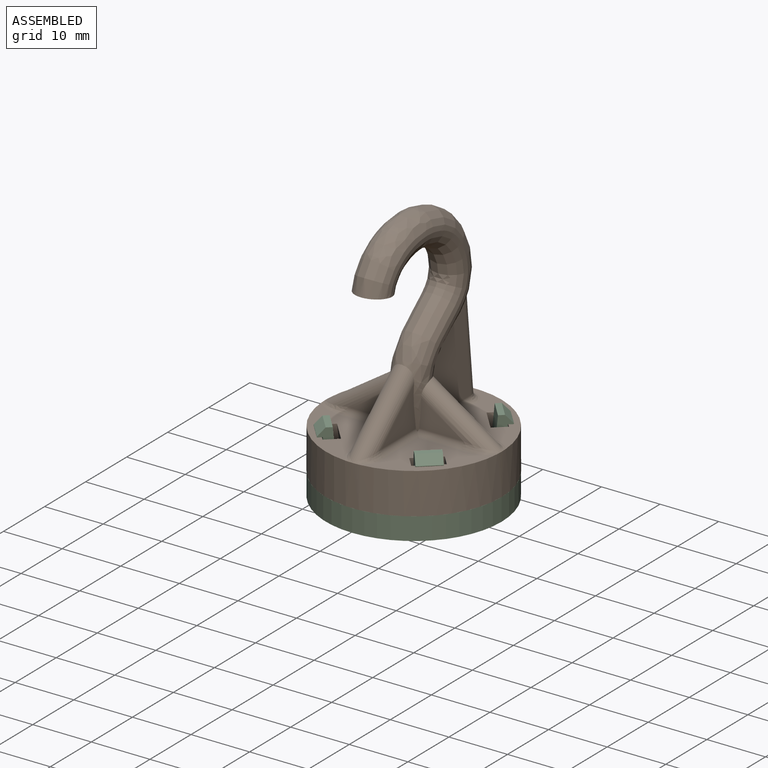
[diagram: assembled view]
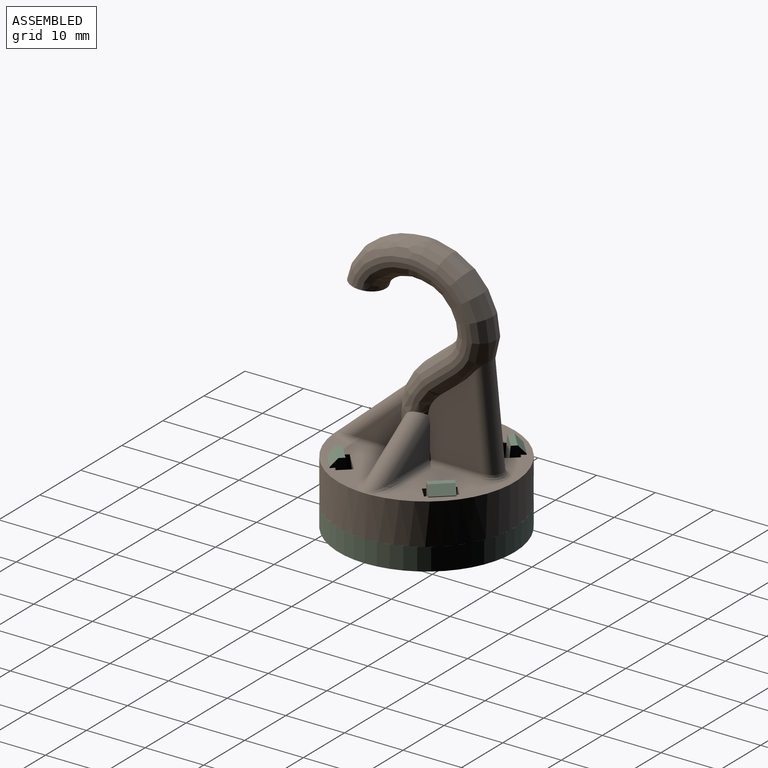
[diagram: assembled view, second angle]
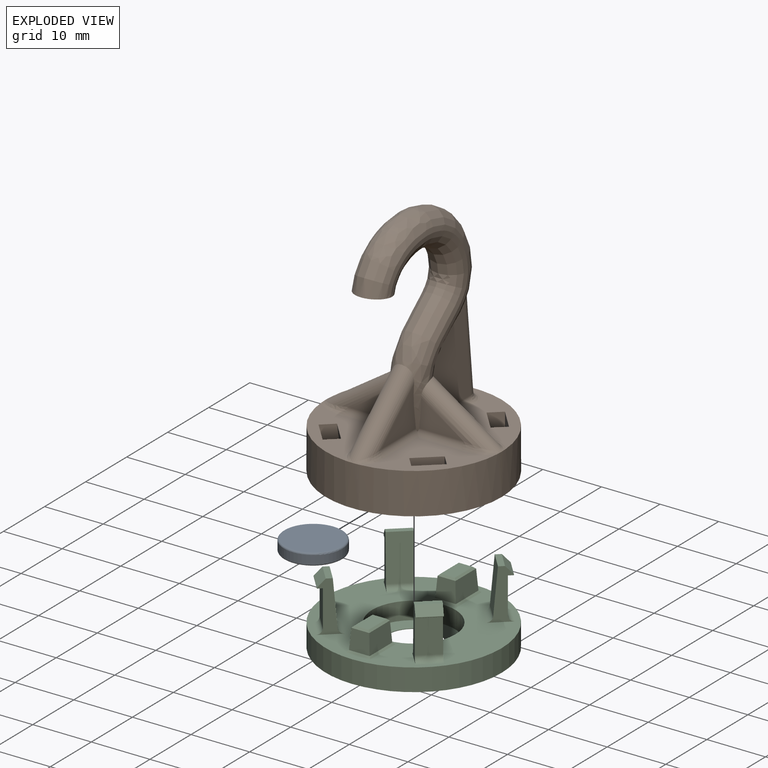
[diagram: exploded view]
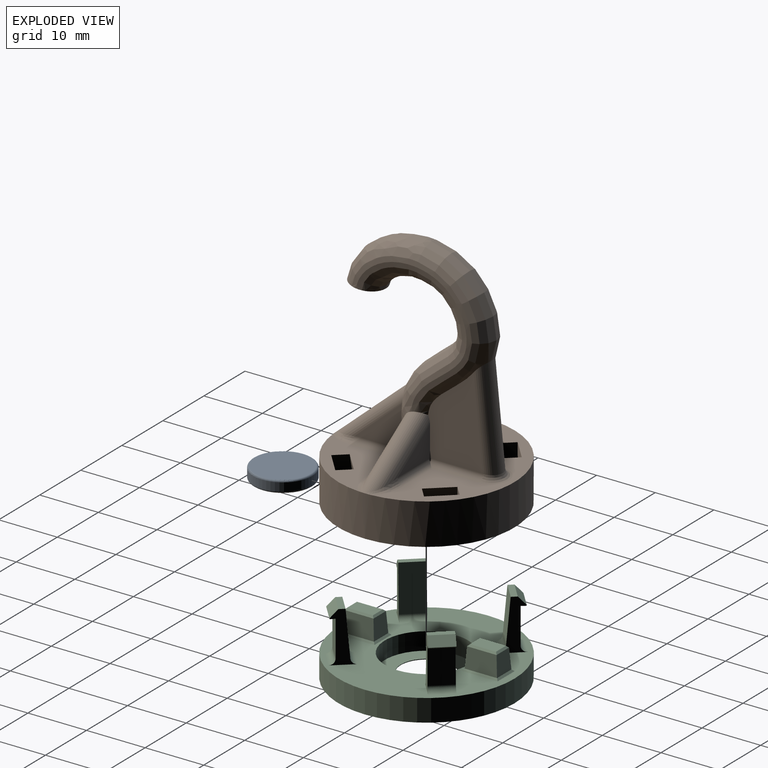
[diagram: exploded view, second angle]
ASSEMBLY  parts=3 mates=2
PART A: 5 faces, bbox 10.8x10.8x2 mm
  f0: cylinder r=5mm len=10mm, axis (0,0,-1), area 44mm2, adj f3,f4
  f1: plane 9.4x9.4mm, normal (0,0,1), area 69.4mm2, adj f4
  f2: plane 9.4x9.4mm, normal (0,0,-1), area 69.4mm2, adj f3
  f3: torus R=4.7mm, axis (0,0,1), area 14.5mm2, adj f0,f2
  f4: torus R=4.7mm, axis (0,0,1), area 14.5mm2, adj f0,f1
PART B: 139 faces, bbox 30.7x31.4x47.2 mm
  f0: plane 30x30mm, normal (0,0,-1), area 398.7mm2, adj f1,f17,f76,f77,f79,f80,f81,f83
  f1: cylinder r=15mm len=30mm, axis (0,0,-1), area 659.7mm2, adj f0,f2,f3,f9,f100,f101,f106,f111
  f2: plane 29.93x13.96mm, normal (0,0,1), area 180.8mm2, adj f1,f84,f85,f86,f87,f88,f89,f90
  f3: plane 13.9x13.69mm, normal (0,0,1), area 87.6mm2, adj f1,f80,f81,f82,f83,f102,f103,f104
  f4: bspline ~36.89x30.83mm, area 772.4mm2, adj f7,f8,f10,f11,f12,f14,f15,f96
  f5: bspline ~6.64x6mm, area 0.2mm2, adj f7,f16,f108,f109
  f6: bspline ~6.64x6mm, area 0.2mm2, adj f8,f13,f112,f114
  f7: plane 15.24x9.38mm, normal (-1,0,0), area 99.9mm2, adj f4,f5,f16,f98,f99,f109
  f8: plane 15.24x9.38mm, normal (1,0,0), area 99.9mm2, adj f4,f6,f13,f97,f99,f112
  f9: plane 13.9x13.69mm, normal (0,0,1), area 87.6mm2, adj f1,f76,f77,f78,f79,f116,f117,f118
  f10: plane 6x5.96mm, normal (0,-0.11,-0.99), area 28.3mm2, adj f4
  f11: plane 8.49x7.08mm, normal (1,0,0), area 28.8mm2, adj f4,f96,f118
  f12: plane 8.49x7.08mm, normal (-1,0,0), area 28.8mm2, adj f4,f96,f104
  f13: plane 7.91x5.26mm, normal (0,1,0), area 20.5mm2, adj f6,f8,f97,f114
  f14: plane 8.04x5.27mm, normal (0,-1,0), area 17.8mm2, adj f4,f97,f117
  f15: plane 8.04x5.27mm, normal (0,-1,0), area 17.8mm2, adj f4,f98,f105
  f16: plane 7.91x5.26mm, normal (0,1,0), area 20.5mm2, adj f5,f7,f98,f108
  f17: cylinder r=7mm len=14mm, axis (0,0,-1), area 131.9mm2, adj f0,f75
  f18: cylinder r=4.9mm len=1.7mm, axis (0,0,-1), area 0.6mm2, adj f26,f29,f30,f31
  f19: cylinder r=4.9mm len=1.7mm, axis (0,0,-1), area 0.6mm2, adj f26,f35,f36,f37
  f20: cylinder r=4.9mm len=1.7mm, axis (0,0,-1), area 0.6mm2, adj f26,f41,f42,f43
  f21: cylinder r=4.9mm len=1.7mm, axis (0,0,-1), area 0.6mm2, adj f26,f47,f48,f49
  f22: cylinder r=4.9mm len=1.7mm, axis (0,0,-1), area 0.6mm2, adj f26,f53,f54,f55
  f23: cylinder r=4.9mm len=1.7mm, axis (0,0,-1), area 0.6mm2, adj f26,f59,f60,f61
  f24: cylinder r=4.9mm len=1.7mm, axis (0,0,-1), area 0.6mm2, adj f26,f65,f66,f67
  f25: cylinder r=4.9mm len=1.7mm, axis (0,0,-1), area 0.6mm2, adj f26,f71,f72,f73
  f26: plane 10.95x10.95mm, normal (0,0,-1), area 91mm2, adj f18,f19,f20,f21,f22,f23,f24,f25
  f27: cylinder r=5.5mm len=3.02mm, axis (0,0,-1), area 6.6mm2, adj f26,f28,f74,f75
  f28: plane 2x0.28mm, normal (1,0,0), area 0.6mm2, adj f26,f27,f29,f75
  f29: plane 2.01x0.32mm, normal (0.69,0.72,0), area 0.8mm2, adj f18,f26,f28,f30,f75
  f30: cone r=4.9mm half-angle=45deg, axis (0,0,-1), area 0.3mm2, adj f18,f29,f31,f75
  f31: plane 2.01x0.32mm, normal (-0.69,0.72,0), area 0.8mm2, adj f18,f26,f30,f32,f75
  f32: plane 2x0.28mm, normal (-1,0,0), area 0.6mm2, adj f26,f31,f33,f75
  f33: cylinder r=5.5mm len=3.02mm, axis (0,0,-1), area 6.6mm2, adj f26,f32,f34,f75
  f34: plane 2x0.2mm, normal (0.71,-0.71,0), area 0.6mm2, adj f26,f33,f35,f75
  f35: plane 2.01x0.44mm, normal (1,0.02,0), area 0.8mm2, adj f19,f26,f34,f36,f75
  f36: cone r=4.9mm half-angle=45deg, axis (0,0,-1), area 0.3mm2, adj f19,f35,f37,f75
  f37: plane 2.01x0.44mm, normal (0.02,1,0), area 0.8mm2, adj f19,f26,f36,f38,f75
  f38: plane 2x0.2mm, normal (-0.71,0.71,0), area 0.6mm2, adj f26,f37,f39,f75
  f39: cylinder r=5.5mm len=3.02mm, axis (0,0,-1), area 6.6mm2, adj f26,f38,f40,f75
  f40: plane 2x0.28mm, normal (0,-1,0), area 0.6mm2, adj f26,f39,f41,f75
  f41: plane 2.01x0.32mm, normal (0.72,-0.69,0), area 0.8mm2, adj f20,f26,f40,f42,f75
  f42: cone r=4.9mm half-angle=45deg, axis (0,0,-1), area 0.3mm2, adj f20,f41,f43,f75
  f43: plane 2.01x0.32mm, normal (0.72,0.69,0), area 0.8mm2, adj f20,f26,f42,f44,f75
  f44: plane 2x0.28mm, normal (0,1,0), area 0.6mm2, adj f26,f43,f45,f75
  f45: cylinder r=5.5mm len=3.02mm, axis (0,0,-1), area 6.6mm2, adj f26,f44,f46,f75
  f46: plane 2x0.2mm, normal (-0.71,-0.71,0), area 0.6mm2, adj f26,f45,f47,f75
  f47: plane 2.01x0.44mm, normal (0.02,-1,0), area 0.8mm2, adj f21,f26,f46,f48,f75
  f48: cone r=4.9mm half-angle=45deg, axis (0,0,-1), area 0.3mm2, adj f21,f47,f49,f75
  f49: plane 2.01x0.44mm, normal (1,-0.02,0), area 0.8mm2, adj f21,f26,f48,f50,f75
  f50: plane 2x0.2mm, normal (0.71,0.71,0), area 0.6mm2, adj f26,f49,f51,f75
  f51: cylinder r=5.5mm len=3.02mm, axis (0,0,-1), area 6.6mm2, adj f26,f50,f52,f75
  f52: plane 2x0.28mm, normal (-1,0,0), area 0.6mm2, adj f26,f51,f53,f75
  f53: plane 2.01x0.32mm, normal (-0.69,-0.72,0), area 0.8mm2, adj f22,f26,f52,f54,f75
  f54: cone r=4.9mm half-angle=45deg, axis (0,0,-1), area 0.3mm2, adj f22,f53,f55,f75
  f55: plane 2.01x0.32mm, normal (0.69,-0.72,0), area 0.8mm2, adj f22,f26,f54,f56,f75
  f56: plane 2x0.28mm, normal (1,0,0), area 0.6mm2, adj f26,f55,f57,f75
  f57: cylinder r=5.5mm len=3.02mm, axis (0,0,-1), area 6.6mm2, adj f26,f56,f58,f75
  f58: plane 2x0.2mm, normal (-0.71,0.71,0), area 0.6mm2, adj f26,f57,f59,f75
  f59: plane 2.01x0.44mm, normal (-1,-0.02,0), area 0.8mm2, adj f23,f26,f58,f60,f75
  f60: cone r=4.9mm half-angle=45deg, axis (0,0,-1), area 0.3mm2, adj f23,f59,f61,f75
  f61: plane 2.01x0.44mm, normal (-0.02,-1,0), area 0.8mm2, adj f23,f26,f60,f62,f75
  f62: plane 2x0.2mm, normal (0.71,-0.71,0), area 0.6mm2, adj f26,f61,f63,f75
  f63: cylinder r=5.5mm len=3.02mm, axis (0,0,-1), area 6.6mm2, adj f26,f62,f64,f75
  f64: plane 2x0.28mm, normal (0,1,0), area 0.6mm2, adj f26,f63,f65,f75
  f65: plane 2.01x0.32mm, normal (-0.72,0.69,0), area 0.8mm2, adj f24,f26,f64,f66,f75
  f66: cone r=4.9mm half-angle=45deg, axis (0,0,-1), area 0.3mm2, adj f24,f65,f67,f75
  f67: plane 2.01x0.32mm, normal (-0.72,-0.69,0), area 0.8mm2, adj f24,f26,f66,f68,f75
  f68: plane 2x0.28mm, normal (0,-1,0), area 0.6mm2, adj f26,f67,f69,f75
  f69: cylinder r=5.5mm len=3.02mm, axis (0,0,-1), area 6.6mm2, adj f26,f68,f70,f75
  f70: plane 2x0.2mm, normal (0.71,0.71,0), area 0.6mm2, adj f26,f69,f71,f75
  f71: plane 2.01x0.44mm, normal (-0.02,1,0), area 0.8mm2, adj f25,f26,f70,f72,f75
  f72: cone r=4.9mm half-angle=45deg, axis (0,0,-1), area 0.3mm2, adj f25,f71,f73,f75
  f73: plane 2.01x0.44mm, normal (-1,0.02,0), area 0.8mm2, adj f25,f26,f72,f74,f75
  f74: plane 2x0.2mm, normal (-0.71,-0.71,0), area 0.6mm2, adj f26,f27,f73,f75
  f75: plane 14x14mm, normal (0,0,-1), area 61.3mm2, adj f17,f27,f28,f29,f30,f31,f32,f33
  f76: plane 7x3.34mm, normal (0.75,0.66,0), area 21.7mm2, adj f0,f9,f77,f78,f95
  f77: plane 7x4.31mm, normal (0.66,-0.74,-0.12), area 35.3mm2, adj f0,f9,f76,f79
  f78: plane 6x3.74mm, normal (-0.66,0.75,0), area 30mm2, adj f9,f76,f79,f95
  f79: plane 7x3.34mm, normal (-0.75,-0.66,0), area 21.7mm2, adj f0,f9,f77,f78,f95
  f80: plane 7x3.34mm, normal (0.66,-0.75,0), area 21.7mm2, adj f0,f3,f81,f82,f94
  f81: plane 7x4.31mm, normal (-0.74,-0.66,-0.12), area 35.3mm2, adj f0,f3,f80,f83
  f82: plane 6x3.74mm, normal (0.75,0.66,0), area 30mm2, adj f3,f80,f83,f94
  f83: plane 7x3.34mm, normal (-0.66,0.75,0), area 21.7mm2, adj f0,f3,f81,f82,f94
  f84: plane 7x3.34mm, normal (-0.75,-0.66,0), area 21.7mm2, adj f0,f2,f85,f86,f93
  f85: plane 7x4.31mm, normal (-0.66,0.74,-0.12), area 35.3mm2, adj f0,f2,f84,f87
  f86: plane 6x3.74mm, normal (0.66,-0.75,0), area 30mm2, adj f2,f84,f87,f93
  f87: plane 7x3.34mm, normal (0.75,0.66,0), area 21.7mm2, adj f0,f2,f85,f86,f93
  f88: plane 7x3.34mm, normal (-0.66,0.75,0), area 21.7mm2, adj f0,f2,f89,f90,f92
  f89: plane 7x4.31mm, normal (0.74,0.66,-0.12), area 35.3mm2, adj f0,f2,f88,f91
  f90: plane 6x3.74mm, normal (-0.75,-0.66,0), area 30mm2, adj f2,f88,f91,f92
  f91: plane 7x3.34mm, normal (0.66,-0.75,0), area 21.7mm2, adj f0,f2,f89,f90,f92
  f92: plane 4.41x4.06mm, normal (-0.53,-0.47,-0.71), area 7.1mm2, adj f0,f88,f90,f91
  f93: plane 4.41x4.06mm, normal (0.47,-0.53,-0.71), area 7.1mm2, adj f0,f84,f86,f87
  f94: plane 4.41x4.06mm, normal (0.53,0.47,-0.71), area 7.1mm2, adj f0,f80,f82,f83
  f95: plane 4.41x4.06mm, normal (-0.47,0.53,-0.71), area 7.1mm2, adj f0,f76,f78,f79
  f96: cylinder r=2mm len=13.33mm, axis (0,-0.75,-0.66), area 85mm2, adj f4,f11,f12,f100,f102,f119,f120
  f97: cylinder r=2mm len=13.62mm, axis (0.83,0,-0.55), area 78.1mm2, adj f4,f8,f13,f14,f111,f113,f115,f116
  f98: cylinder r=2mm len=13.62mm, axis (0.83,0,0.55), area 78mm2, adj f4,f7,f15,f16,f101,f103,f106,f107
  f99: cylinder r=2mm len=16.83mm, axis (0,0.1,-0.99), area 100.5mm2, adj f4,f7,f8,f110
  f100: bspline ~1.8x0.96mm, area 0.3mm2, adj f1,f96,f102
  f101: bspline ~1.17x0.63mm, area 0.2mm2, adj f1,f98,f103
  f102: bspline ~4.12x2.15mm, area 4.9mm2, adj f3,f96,f100,f104
  f103: bspline ~5.09x2.31mm, area 5.9mm2, adj f3,f98,f101,f105
  f104: cylinder r=1mm len=8.69mm, axis (0,1,0), area 13.2mm2, adj f3,f4,f12,f102,f105
  f105: cylinder r=1mm len=7.73mm, axis (-1,0,0), area 11.7mm2, adj f3,f4,f15,f103,f104
  f106: bspline ~1.17x0.63mm, area 0.3mm2, adj f1,f98,f107
  f107: bspline ~5.09x2.31mm, area 5.9mm2, adj f2,f98,f106,f108
  f108: cylinder r=1mm len=7.76mm, axis (1,0,0), area 11.7mm2, adj f2,f5,f16,f107,f109
  f109: cylinder r=1mm len=8.9mm, axis (0,1,0), area 13.5mm2, adj f2,f5,f7,f108,f110
  f110: bspline ~6x3.01mm, area 11.3mm2, adj f2,f99,f109,f112
  f111: bspline ~1.17x0.63mm, area 0.3mm2, adj f1,f97,f113
  f112: cylinder r=1mm len=8.9mm, axis (0,-1,0), area 13.5mm2, adj f2,f6,f8,f110,f114
  f113: bspline ~6.25x2.57mm, area 5.9mm2, adj f2,f97,f111,f114
  f114: cylinder r=1mm len=7.76mm, axis (1,0,0), area 11.7mm2, adj f2,f6,f13,f112,f113
  f115: bspline ~1.17x0.63mm, area 0.2mm2, adj f1,f97,f116
  f116: bspline ~6.25x2.57mm, area 5.9mm2, adj f9,f97,f115,f117
  f117: cylinder r=1mm len=7.73mm, axis (-1,0,0), area 11.7mm2, adj f4,f9,f14,f116,f118
  f118: cylinder r=1mm len=8.69mm, axis (0,-1,0), area 13.2mm2, adj f4,f9,f11,f117,f120
  f119: bspline ~1.8x0.96mm, area 0.3mm2, adj f1,f96,f120
  f120: bspline ~4.12x2.15mm, area 4.9mm2, adj f9,f96,f118,f119
  f121: plane 4x3.7mm, normal (0,1,-0.09), area 13.5mm2, adj f122,f124,f125,f132
  f122: plane 5.7x4mm, normal (1,0,-0.09), area 21.5mm2, adj f121,f123,f125,f134
  f123: plane 4x3.7mm, normal (0,-1,-0.09), area 13.5mm2, adj f122,f124,f125,f133
  f124: plane 5.7x4mm, normal (-1,0,-0.09), area 21.5mm2, adj f121,f123,f125,f131
  f125: plane 5x3mm, normal (0,0,-1), area 15mm2, adj f121,f122,f123,f124
  f126: plane 4x3.7mm, normal (0,-1,-0.09), area 13.5mm2, adj f127,f129,f130,f135
  f127: plane 5.7x4mm, normal (-1,0,-0.09), area 21.5mm2, adj f126,f128,f130,f137
  f128: plane 4x3.7mm, normal (0,1,-0.09), area 13.5mm2, adj f127,f129,f130,f138
  f129: plane 5.7x4mm, normal (1,0,-0.09), area 21.5mm2, adj f126,f128,f130,f136
  f130: plane 5x3mm, normal (0,0,-1), area 15mm2, adj f126,f127,f128,f129
  f131: plane 6.79x0.54mm, normal (-0.68,0,-0.74), area 4.6mm2, adj f0,f124,f132,f133
  f132: plane 4.79x0.54mm, normal (0,0.68,-0.74), area 3.1mm2, adj f0,f121,f131,f134
  f133: plane 4.79x0.54mm, normal (0,-0.68,-0.74), area 3.1mm2, adj f0,f123,f131,f134
  f134: plane 6.79x0.54mm, normal (0.68,0,-0.74), area 4.6mm2, adj f0,f122,f132,f133
  f135: plane 4.79x0.54mm, normal (0,-0.68,-0.74), area 3.1mm2, adj f0,f126,f136,f137
  f136: plane 6.79x0.54mm, normal (0.68,0,-0.74), area 4.6mm2, adj f0,f129,f135,f138
  f137: plane 6.79x0.54mm, normal (-0.68,0,-0.74), area 4.6mm2, adj f0,f127,f135,f138
  f138: plane 4.79x0.54mm, normal (0,0.68,-0.74), area 3.1mm2, adj f0,f128,f136,f137
PART C: 73 faces, bbox 30x30x12.4 mm
  f0: plane 30x30mm, normal (0,0,1), area 432.1mm2, adj f6,f8,f11,f13,f18,f19,f20,f22
  f1: plane 6.15x2.99mm, normal (0.66,-0.75,0), area 24.6mm2, adj f38,f40,f41,f46
  f2: plane 6.15x2.99mm, normal (-0.75,-0.66,0), area 24.6mm2, adj f29,f31,f32,f37
  f3: plane 6.15x2.99mm, normal (-0.66,0.75,0), area 24.6mm2, adj f20,f22,f23,f28
  f4: plane 6.15x2.99mm, normal (0.75,0.66,0), area 24.6mm2, adj f11,f13,f14,f19
  f5: cylinder r=4.4mm len=8.8mm, axis (0,0,-1), area 2.8mm2, adj f9,f10
  f6: cylinder r=15mm len=30mm, axis (0,0,-1), area 358.1mm2, adj f0,f7
  f7: plane 30x30mm, normal (0,0,-1), area 429.3mm2, adj f6,f10
  f8: cylinder r=7.1mm len=14.2mm, axis (0,0,1), area 133.8mm2, adj f0,f9
  f9: plane 14.2x14.2mm, normal (0,0,1), area 97.5mm2, adj f5,f8
  f10: cone r=9.4mm half-angle=82deg, axis (0,0,-1), area 218.9mm2, adj f5,f7
  f11: plane 8.62x3.05mm, normal (-0.66,0.75,0), area 16.1mm2, adj f0,f4,f12,f14,f15,f16,f17,f18
  f12: plane 7.7x3.44mm, normal (-0.75,-0.66,0.09), area 30.9mm2, adj f11,f13,f16,f18
  f13: plane 8.62x3.05mm, normal (0.66,-0.75,0), area 16.1mm2, adj f0,f4,f12,f14,f15,f16,f17,f18
  f14: plane 3.5x3.22mm, normal (-0.03,-0.02,-1), area 3mm2, adj f4,f11,f13,f17
  f15: plane 3.81x3.58mm, normal (0.55,0.48,0.68), area 7.2mm2, adj f11,f13,f16,f17
  f16: plane 3.66x3.4mm, normal (0,0,1), area 4mm2, adj f11,f12,f13,f15
  f17: cylinder r=0.1mm len=3.06mm, axis (0.66,-0.75,0), area 0.9mm2, adj f11,f13,f14,f15
  f18: cylinder r=1mm len=3.66mm, axis (0.66,-0.75,0), area 5.9mm2, adj f0,f11,f12,f13
  f19: cylinder r=1mm len=3.66mm, axis (-0.66,0.75,0), area 6.3mm2, adj f0,f4,f11,f13
  f20: plane 8.62x3.05mm, normal (-0.75,-0.66,0), area 16.1mm2, adj f0,f3,f21,f23,f24,f25,f26,f27
  f21: plane 7.7x3.44mm, normal (0.66,-0.75,0.09), area 30.9mm2, adj f20,f22,f25,f27
  f22: plane 8.62x3.05mm, normal (0.75,0.66,0), area 16.1mm2, adj f0,f3,f21,f23,f24,f25,f26,f27
  f23: plane 3.5x3.22mm, normal (0.02,-0.03,-1), area 3mm2, adj f3,f20,f22,f26
  f24: plane 3.81x3.58mm, normal (-0.48,0.55,0.68), area 7.2mm2, adj f20,f22,f25,f26
  f25: plane 3.66x3.4mm, normal (0,0,1), area 4mm2, adj f20,f21,f22,f24
  f26: cylinder r=0.1mm len=3.06mm, axis (0.75,0.66,0), area 0.9mm2, adj f20,f22,f23,f24
  f27: cylinder r=1mm len=3.66mm, axis (0.75,0.66,0), area 5.9mm2, adj f0,f20,f21,f22
  f28: cylinder r=1mm len=3.66mm, axis (-0.75,-0.66,0), area 6.3mm2, adj f0,f3,f20,f22
  f29: plane 8.62x3.05mm, normal (0.66,-0.75,0), area 16.1mm2, adj f0,f2,f30,f32,f33,f34,f35,f36
  f30: plane 7.7x3.44mm, normal (0.75,0.66,0.09), area 30.9mm2, adj f29,f31,f34,f36
  f31: plane 8.62x3.05mm, normal (-0.66,0.75,0), area 16.1mm2, adj f0,f2,f30,f32,f33,f34,f35,f36
  f32: plane 3.5x3.22mm, normal (0.03,0.02,-1), area 3mm2, adj f2,f29,f31,f35
  f33: plane 3.81x3.58mm, normal (-0.55,-0.48,0.68), area 7.2mm2, adj f29,f31,f34,f35
  f34: plane 3.66x3.4mm, normal (0,0,1), area 4mm2, adj f29,f30,f31,f33
  f35: cylinder r=0.1mm len=3.06mm, axis (-0.66,0.75,0), area 0.9mm2, adj f29,f31,f32,f33
  f36: cylinder r=1mm len=3.66mm, axis (-0.66,0.75,0), area 5.9mm2, adj f0,f29,f30,f31
  f37: cylinder r=1mm len=3.66mm, axis (0.66,-0.75,0), area 6.3mm2, adj f0,f2,f29,f31
  f38: plane 8.62x3.05mm, normal (0.75,0.66,0), area 16.1mm2, adj f0,f1,f39,f41,f42,f43,f44,f45
  f39: plane 7.7x3.44mm, normal (-0.66,0.75,0.09), area 30.9mm2, adj f38,f40,f43,f45
  f40: plane 8.62x3.05mm, normal (-0.75,-0.66,0), area 16.1mm2, adj f0,f1,f39,f41,f42,f43,f44,f45
  f41: plane 3.5x3.22mm, normal (-0.02,0.03,-1), area 3mm2, adj f1,f38,f40,f44
  f42: plane 3.81x3.58mm, normal (0.48,-0.55,0.68), area 7.2mm2, adj f38,f40,f43,f44
  f43: plane 3.66x3.4mm, normal (0,0,1), area 4mm2, adj f38,f39,f40,f42
  f44: cylinder r=0.1mm len=3.06mm, axis (-0.75,-0.66,0), area 0.9mm2, adj f38,f40,f41,f42
  f45: cylinder r=1mm len=3.66mm, axis (-0.75,-0.66,0), area 5.9mm2, adj f0,f38,f39,f40
  f46: cylinder r=1mm len=3.66mm, axis (0.75,0.66,0), area 6.3mm2, adj f0,f1,f38,f40
  f47: plane 3.52x3.4mm, normal (0,1,0.07), area 11.2mm2, adj f48,f50,f52,f56
  f48: plane 5.52x3.4mm, normal (-1,0,0.07), area 18mm2, adj f47,f49,f53,f57
  f49: plane 3.52x3.4mm, normal (0,-1,0.07), area 11.2mm2, adj f48,f50,f55,f59
  f50: plane 5.52x3.4mm, normal (1,0,0.07), area 18mm2, adj f47,f49,f54,f58
  f51: plane 4.4x2.4mm, normal (0,0,1), area 10.6mm2, adj f52,f53,f54,f55
  f52: plane 3.04x0.32mm, normal (0,0.68,0.73), area 1.2mm2, adj f47,f51,f53,f54
  f53: plane 5.04x0.32mm, normal (-0.68,0,0.73), area 2.1mm2, adj f48,f51,f52,f55
  f54: plane 5.04x0.32mm, normal (0.68,0,0.73), area 2.1mm2, adj f50,f51,f52,f55
  f55: plane 3.04x0.32mm, normal (0,-0.68,0.73), area 1.2mm2, adj f49,f51,f53,f54
  f56: plane 4.16x0.32mm, normal (0,0.68,0.73), area 1.7mm2, adj f0,f47,f57,f58
  f57: plane 6.16x0.32mm, normal (-0.68,0,0.73), area 2.6mm2, adj f0,f48,f56,f59
  f58: plane 6.16x0.32mm, normal (0.68,0,0.73), area 2.6mm2, adj f0,f50,f56,f59
  f59: plane 4.16x0.32mm, normal (0,-0.68,0.73), area 1.7mm2, adj f0,f49,f57,f58
  f60: plane 3.52x3.4mm, normal (0,-1,0.07), area 11.2mm2, adj f61,f63,f65,f69
  f61: plane 5.52x3.4mm, normal (1,0,0.07), area 18mm2, adj f60,f62,f67,f71
  f62: plane 3.52x3.4mm, normal (0,1,0.07), area 11.2mm2, adj f61,f63,f68,f72
  f63: plane 5.52x3.4mm, normal (-1,0,0.07), area 18mm2, adj f60,f62,f66,f70
  f64: plane 4.4x2.4mm, normal (0,0,1), area 10.6mm2, adj f65,f66,f67,f68
  f65: plane 3.04x0.32mm, normal (0,-0.68,0.73), area 1.2mm2, adj f60,f64,f66,f67
  f66: plane 5.04x0.32mm, normal (-0.68,0,0.73), area 2.1mm2, adj f63,f64,f65,f68
  f67: plane 5.04x0.32mm, normal (0.68,0,0.73), area 2.1mm2, adj f61,f64,f65,f68
  f68: plane 3.04x0.32mm, normal (0,0.68,0.73), area 1.2mm2, adj f62,f64,f66,f67
  f69: plane 4.16x0.32mm, normal (0,-0.68,0.73), area 1.7mm2, adj f0,f60,f70,f71
  f70: plane 6.16x0.32mm, normal (-0.68,0,0.73), area 2.6mm2, adj f0,f63,f69,f72
  f71: plane 6.16x0.32mm, normal (0.68,0,0.73), area 2.6mm2, adj f0,f61,f69,f72
  f72: plane 4.16x0.32mm, normal (0,0.68,0.73), area 1.7mm2, adj f0,f62,f70,f71
PLACE A at identity
PLACE B at identity fixed
PLACE C t=(0,0,-0.8)mm
MATE fastened A.f0 <-> B.f27  axis (0,0,1) through (0,0,2)mm
MATE fastened C.f8 <-> A.f0  axis (0,0,1) through (0,0,0)mm
